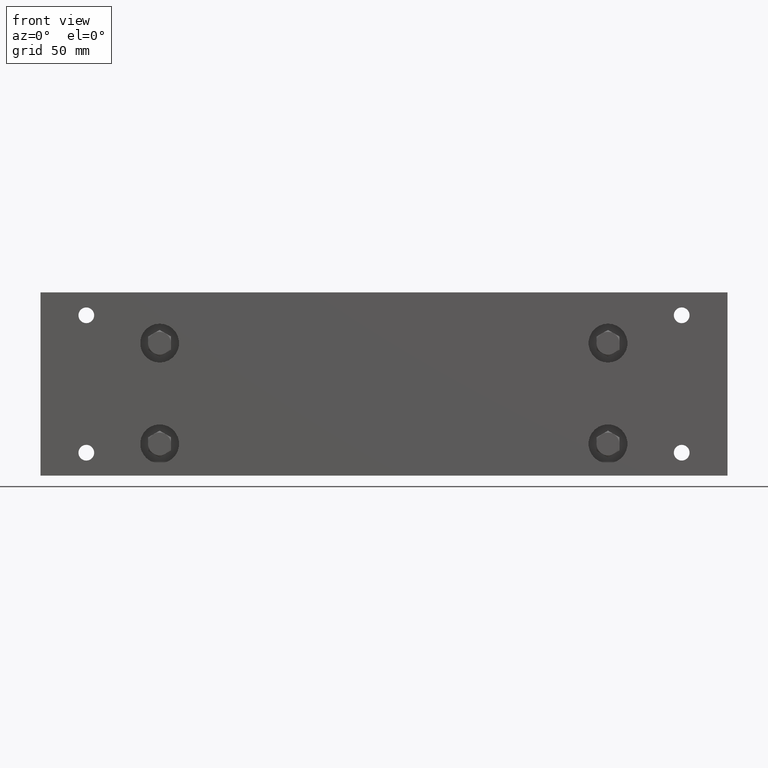
[diagram: clean part render]
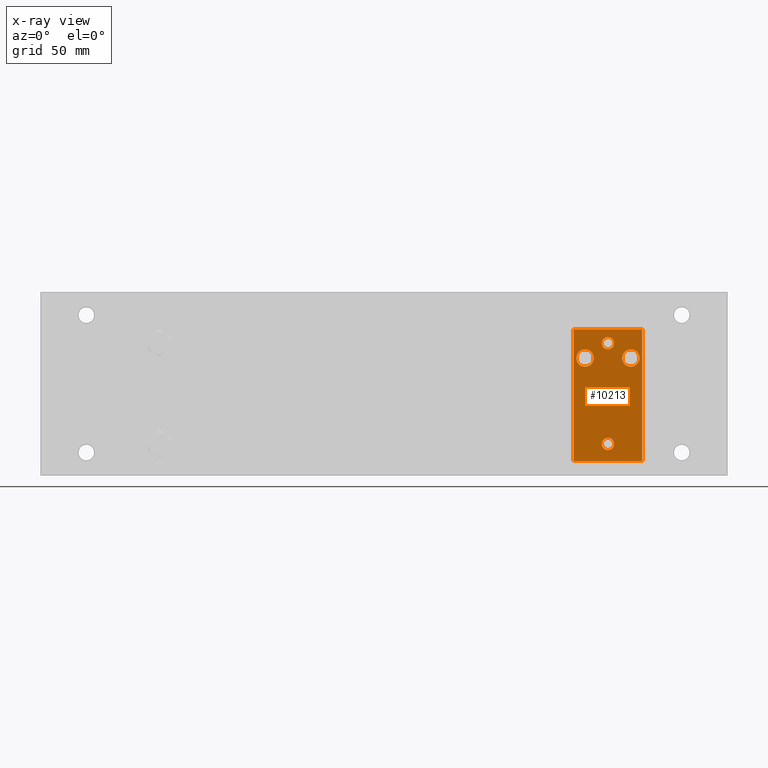
[diagram: x-ray — body ghosted, one internal face saturated and labeled with its STEP entity id]
A machine part, front view, then the same camera in x-ray: the body is ghosted and one INTERNAL B-rep face — a face not visible from any outside direction — is saturated and labeled: STEP entity #10213.
In plain terms, the highlighted planar face has unit normal (0, 1, 0).
Its self-contained STEP definition (entity closure, byte-faithful):
#31 = FACE_OUTER_BOUND ( 'NONE', #20222, .T. ) ;
#35 = EDGE_CURVE ( 'NONE', #6773, #6773, #22481, .T. ) ;
#255 = CARTESIAN_POINT ( 'NONE',  ( 10.28999999999999900, -0.5000000000000001100, -1.912293595564984100E-015 ) ) ;
#261 = DIRECTION ( 'NONE',  ( 3.491106940328971200E-017, 1.000000000000000000, 5.945035953114830700E-018 ) ) ;
#544 = CIRCLE ( 'NONE', #26103, 0.1884999999999999200 ) ;
#567 = VERTEX_POINT ( 'NONE', #17846 ) ;
#909 = VERTEX_POINT ( 'NONE', #14672 ) ;
#1359 = EDGE_CURVE ( 'NONE', #909, #18828, #27722, .T. ) ;
#1412 = DIRECTION ( 'NONE',  ( 1.000000000000000000, -3.491106940328970000E-017, -2.775557561562891400E-016 ) ) ;
#1540 = EDGE_LOOP ( 'NONE', ( #12217 ) ) ;
#1554 = CARTESIAN_POINT ( 'NONE',  ( 9.790000000000000900, -0.5000000000000001100, -1.742000000000002400 ) ) ;
#1622 = ORIENTED_EDGE ( 'NONE', *, *, #20635, .F. ) ;
#2084 = VERTEX_POINT ( 'NONE', #23404 ) ;
#4104 = CARTESIAN_POINT ( 'NONE',  ( 9.040000000000000900, -0.5000000000000001100, 0.6249999999999983300 ) ) ;
#4980 = ORIENTED_EDGE ( 'NONE', *, *, #10942, .T. ) ;
#5042 = EDGE_CURVE ( 'NONE', #18828, #19898, #25937, .T. ) ;
#5582 = LINE ( 'NONE', #14432, #21021 ) ;
#5666 = CARTESIAN_POINT ( 'NONE',  ( 9.290000000000000900, -0.5000000000000001100, -0.1885000000000012800 ) ) ;
#6320 = FACE_BOUND ( 'NONE', #1540, .T. ) ;
#6646 = EDGE_LOOP ( 'NONE', ( #25391 ) ) ;
#6669 = DIRECTION ( 'NONE',  ( 3.491106940328968100E-017, 1.000000000000000000, -9.953172055901890800E-017 ) ) ;
#6773 = VERTEX_POINT ( 'NONE', #20564 ) ;
#7345 = DIRECTION ( 'NONE',  ( 0.0000000000000000000, 0.0000000000000000000, -1.000000000000000000 ) ) ;
#8010 = CARTESIAN_POINT ( 'NONE',  ( 9.040000000000000900, -0.5000000000000001100, 0.6249999999999983300 ) ) ;
#8533 = AXIS2_PLACEMENT_3D ( 'NONE', #24190, #10789, #26481 ) ;
#8895 = AXIS2_PLACEMENT_3D ( 'NONE', #255, #6669, #7345 ) ;
#9367 = VECTOR ( 'NONE', #1412, 39.37007874015748100 ) ;
#9395 = ORIENTED_EDGE ( 'NONE', *, *, #26806, .T. ) ;
#9460 = CARTESIAN_POINT ( 'NONE',  ( 10.54000000000000100, -0.5000000000000001100, 0.6249999999999983300 ) ) ;
#9483 = EDGE_CURVE ( 'NONE', #2084, #2084, #21814, .T. ) ;
#10213 = ADVANCED_FACE ( 'NONE', ( #24169, #6320, #16547, #17522, #31 ), #18228, .F. ) ;
#10616 = VERTEX_POINT ( 'NONE', #5666 ) ;
#10750 = DIRECTION ( 'NONE',  ( 2.775557561562891400E-016, -5.945035953114840700E-018, 1.000000000000000000 ) ) ;
#10789 = DIRECTION ( 'NONE',  ( -3.491106940328971200E-017, -1.000000000000000000, -5.945035953114833000E-018 ) ) ;
#10899 = ORIENTED_EDGE ( 'NONE', *, *, #1359, .F. ) ;
#10942 = EDGE_CURVE ( 'NONE', #567, #19898, #16521, .T. ) ;
#11188 = EDGE_LOOP ( 'NONE', ( #1622 ) ) ;
#11699 = CARTESIAN_POINT ( 'NONE',  ( 9.290000000000000900, -0.5000000000000001100, -1.365923996832131600E-015 ) ) ;
#12217 = ORIENTED_EDGE ( 'NONE', *, *, #9483, .F. ) ;
#12315 = EDGE_CURVE ( 'NONE', #10616, #10616, #544, .T. ) ;
#13109 = CARTESIAN_POINT ( 'NONE',  ( 10.54000000000000100, -0.5000000000000001100, -2.255000000000001700 ) ) ;
#13344 = CARTESIAN_POINT ( 'NONE',  ( 9.790000000000000900, -0.5000000000000001100, -1.875000000000002000 ) ) ;
#13825 = CARTESIAN_POINT ( 'NONE',  ( 9.039999999999999100, -0.5000000000000001100, -2.255000000000001200 ) ) ;
#13947 = DIRECTION ( 'NONE',  ( 0.0000000000000000000, 0.0000000000000000000, -1.000000000000000000 ) ) ;
#14432 = CARTESIAN_POINT ( 'NONE',  ( 9.039999999999999100, -0.5000000000000001100, -2.255000000000001200 ) ) ;
#14672 = CARTESIAN_POINT ( 'NONE',  ( 9.039999999999999100, -0.5000000000000001100, -2.255000000000001200 ) ) ;
#15592 = DIRECTION ( 'NONE',  ( 0.0000000000000000000, 0.0000000000000000000, 1.000000000000000000 ) ) ;
#16067 = DIRECTION ( 'NONE',  ( -2.775557561562891400E-016, 5.945035953114840700E-018, -1.000000000000000000 ) ) ;
#16521 = LINE ( 'NONE', #13109, #27789 ) ;
#16547 = FACE_BOUND ( 'NONE', #6646, .T. ) ;
#17326 = AXIS2_PLACEMENT_3D ( 'NONE', #13825, #261, #16067 ) ;
#17522 = FACE_BOUND ( 'NONE', #25272, .T. ) ;
#17846 = CARTESIAN_POINT ( 'NONE',  ( 10.54000000000000100, -0.5000000000000001100, -2.255000000000001700 ) ) ;
#18228 = PLANE ( 'NONE',  #17326 ) ;
#18828 = VERTEX_POINT ( 'NONE', #4104 ) ;
#19898 = VERTEX_POINT ( 'NONE', #9460 ) ;
#20222 = EDGE_LOOP ( 'NONE', ( #4980, #24451, #10899, #9395 ) ) ;
#20564 = CARTESIAN_POINT ( 'NONE',  ( 10.28999999999999900, -0.5000000000000001100, -0.1885000000000018300 ) ) ;
#20635 = EDGE_CURVE ( 'NONE', #25318, #25318, #22979, .T. ) ;
#21021 = VECTOR ( 'NONE', #24380, 39.37007874015748100 ) ;
#21515 = VECTOR ( 'NONE', #29083, 39.37007874015748100 ) ;
#21814 = CIRCLE ( 'NONE', #8533, 0.1329999999999995900 ) ;
#22481 = CIRCLE ( 'NONE', #8895, 0.1884999999999999200 ) ;
#22979 = CIRCLE ( 'NONE', #27616, 0.1329999999999996500 ) ;
#23404 = CARTESIAN_POINT ( 'NONE',  ( 9.790000000000000900, -0.5000000000000001100, 0.4579999999999979100 ) ) ;
#24169 = FACE_BOUND ( 'NONE', #11188, .T. ) ;
#24190 = CARTESIAN_POINT ( 'NONE',  ( 9.790000000000000900, -0.5000000000000001100, 0.3249999999999982900 ) ) ;
#24380 = DIRECTION ( 'NONE',  ( 1.000000000000000000, -3.491106940328970000E-017, -2.775557561562891400E-016 ) ) ;
#24451 = ORIENTED_EDGE ( 'NONE', *, *, #5042, .F. ) ;
#25272 = EDGE_LOOP ( 'NONE', ( #27346 ) ) ;
#25317 = CARTESIAN_POINT ( 'NONE',  ( 9.039999999999999100, -0.5000000000000001100, -2.255000000000001200 ) ) ;
#25318 = VERTEX_POINT ( 'NONE', #1554 ) ;
#25391 = ORIENTED_EDGE ( 'NONE', *, *, #35, .T. ) ;
#25937 = LINE ( 'NONE', #8010, #9367 ) ;
#26103 = AXIS2_PLACEMENT_3D ( 'NONE', #11699, #27396, #13947 ) ;
#26481 = DIRECTION ( 'NONE',  ( 0.0000000000000000000, 0.0000000000000000000, 1.000000000000000000 ) ) ;
#26806 = EDGE_CURVE ( 'NONE', #909, #567, #5582, .T. ) ;
#27346 = ORIENTED_EDGE ( 'NONE', *, *, #12315, .T. ) ;
#27396 = DIRECTION ( 'NONE',  ( 3.491106940328968100E-017, 1.000000000000000000, -9.953172055901890800E-017 ) ) ;
#27616 = AXIS2_PLACEMENT_3D ( 'NONE', #13344, #29044, #15592 ) ;
#27722 = LINE ( 'NONE', #25317, #21515 ) ;
#27789 = VECTOR ( 'NONE', #10750, 39.37007874015748100 ) ;
#29044 = DIRECTION ( 'NONE',  ( -3.491106940328971200E-017, -1.000000000000000000, -5.945035953114833000E-018 ) ) ;
#29083 = DIRECTION ( 'NONE',  ( 2.775557561562891400E-016, -5.945035953114840700E-018, 1.000000000000000000 ) ) ;